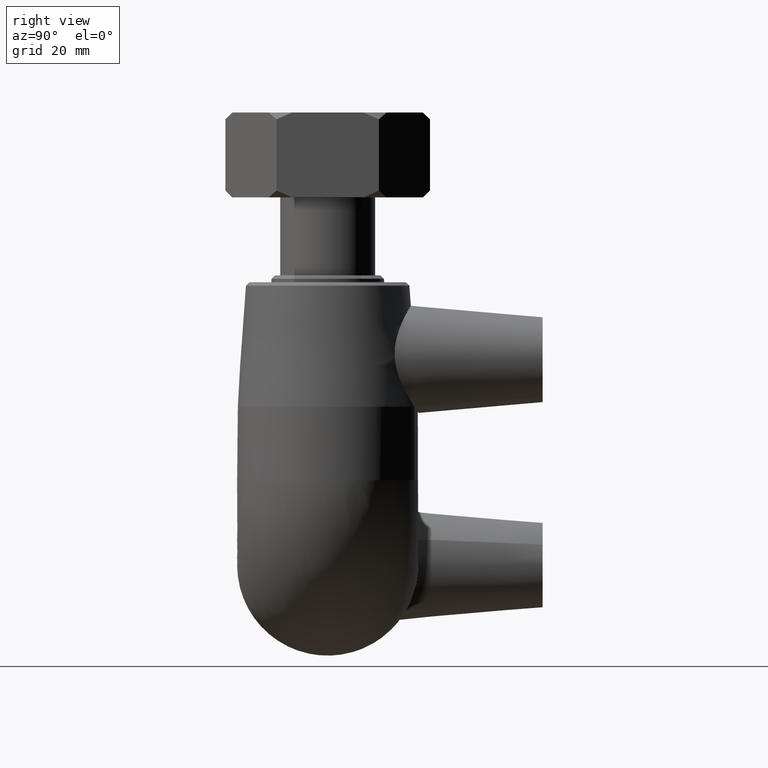
[diagram: clean part render]
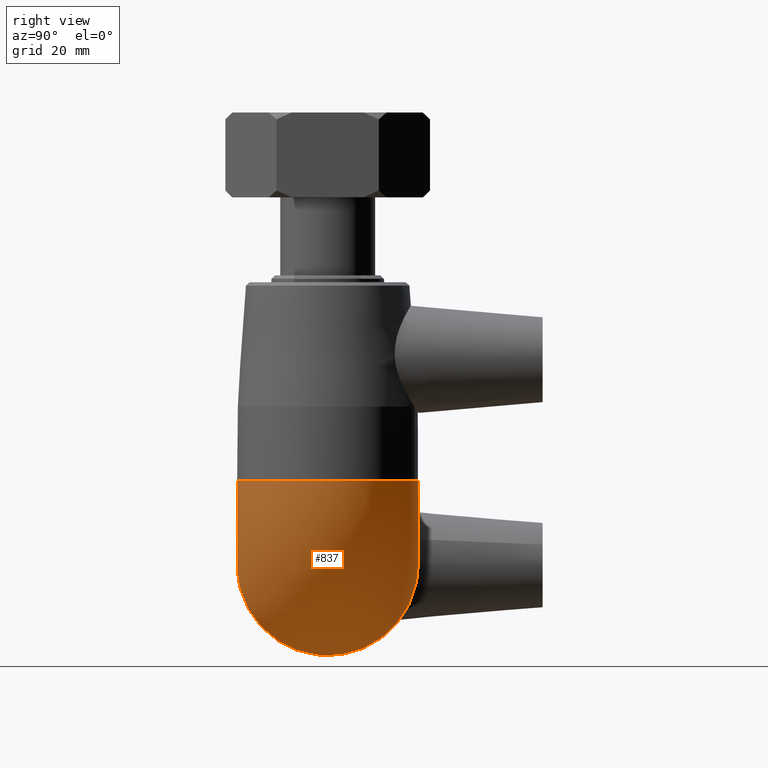
[diagram: same view with one face highlighted and labeled with its STEP entity id]
A machine part, right view. The second image highlights one B-rep face of the part: STEP entity #837.
In plain terms, the highlighted face is a freeform B-spline surface patch.
Its self-contained STEP definition (entity closure, byte-faithful):
#16=(
BOUNDED_SURFACE()
B_SPLINE_SURFACE(2,2,((#1544,#1545,#1546),(#1547,#1548,#1549),(#1550,#1551,
#1552),(#1553,#1554,#1555),(#1556,#1557,#1558),(#1559,#1560,#1561),(#1562,
#1563,#1564),(#1565,#1566,#1567),(#1568,#1569,#1570)),.UNSPECIFIED.,.F.,
 .F.,.F.)
B_SPLINE_SURFACE_WITH_KNOTS((3,2,2,2,3),(3,3),(-2.78617145189957,-1.39308572594979,
0.,1.39308572594979,2.78617145189957),(-4.067388539241E-18,1.5707963267949),
 .UNSPECIFIED.)
GEOMETRIC_REPRESENTATION_ITEM()
RATIONAL_B_SPLINE_SURFACE(((1.,0.707106781186547,1.),(0.767064761052362,
0.542396694149364,0.767064761052362),(1.,0.707106781186547,1.),(0.767064761052362,
0.542396694149364,0.767064761052362),(1.,0.707106781186547,1.),(0.767064761052362,
0.542396694149364,0.767064761052362),(1.,0.707106781186547,1.),(0.767064761052362,
0.542396694149364,0.767064761052362),(1.,0.707106781186547,1.)))
REPRESENTATION_ITEM('')
SURFACE()
);
#204=FACE_OUTER_BOUND('',#292,.T.);
#292=EDGE_LOOP('',(#724,#725));
#366=CIRCLE('',#943,16.);
#367=CIRCLE('',#944,16.);
#448=VERTEX_POINT('',#1571);
#449=VERTEX_POINT('',#1572);
#546=EDGE_CURVE('',#448,#449,#366,.T.);
#547=EDGE_CURVE('',#449,#448,#367,.T.);
#724=ORIENTED_EDGE('',*,*,#546,.T.);
#725=ORIENTED_EDGE('',*,*,#547,.T.);
#837=ADVANCED_FACE('',(#204),#16,.F.);
#943=AXIS2_PLACEMENT_3D('',#1573,#1162,#1163);
#944=AXIS2_PLACEMENT_3D('',#1574,#1164,#1165);
#1162=DIRECTION('center_axis',(6.12323399573677E-17,-2.77555756156289E-18,
-1.));
#1163=DIRECTION('ref_axis',(-1.,0.,-6.12323399573677E-17));
#1164=DIRECTION('center_axis',(1.,-2.77555756156289E-18,0.));
#1165=DIRECTION('ref_axis',(0.,0.,-1.));
#1544=CARTESIAN_POINT('Ctrl Pts',(-15.,5.56776436282997,15.));
#1545=CARTESIAN_POINT('Ctrl Pts',(-15.,5.56776436282997,15.));
#1546=CARTESIAN_POINT('Ctrl Pts',(-15.,5.56776436282997,15.));
#1547=CARTESIAN_POINT('Ctrl Pts',(-15.,18.1137000724512,10.3431457505077));
#1548=CARTESIAN_POINT('Ctrl Pts',(-10.3431457505077,18.1137000724512,10.3431457505077));
#1549=CARTESIAN_POINT('Ctrl Pts',(-10.3431457505077,18.1137000724512,15.));
#1550=CARTESIAN_POINT('Ctrl Pts',(-15.,15.7480157480236,-2.82842712474616));
#1551=CARTESIAN_POINT('Ctrl Pts',(2.82842712474616,15.7480157480236,-2.82842712474616));
#1552=CARTESIAN_POINT('Ctrl Pts',(2.82842712474616,15.7480157480236,15.));
#1553=CARTESIAN_POINT('Ctrl Pts',(-15.,13.382331423596,-16.));
#1554=CARTESIAN_POINT('Ctrl Pts',(16.,13.382331423596,-16.));
#1555=CARTESIAN_POINT('Ctrl Pts',(16.,13.382331423596,15.));
#1556=CARTESIAN_POINT('Ctrl Pts',(-15.,0.,-16.));
#1557=CARTESIAN_POINT('Ctrl Pts',(16.,-8.60422844084496E-17,-16.));
#1558=CARTESIAN_POINT('Ctrl Pts',(16.,-8.60422844084496E-17,15.));
#1559=CARTESIAN_POINT('Ctrl Pts',(-15.,-13.382331423596,-16.));
#1560=CARTESIAN_POINT('Ctrl Pts',(16.,-13.382331423596,-16.));
#1561=CARTESIAN_POINT('Ctrl Pts',(16.,-13.382331423596,15.));
#1562=CARTESIAN_POINT('Ctrl Pts',(-15.,-15.7480157480236,-2.82842712474616));
#1563=CARTESIAN_POINT('Ctrl Pts',(2.82842712474616,-15.7480157480236,-2.82842712474616));
#1564=CARTESIAN_POINT('Ctrl Pts',(2.82842712474616,-15.7480157480236,15.));
#1565=CARTESIAN_POINT('Ctrl Pts',(-15.,-18.1137000724512,10.3431457505077));
#1566=CARTESIAN_POINT('Ctrl Pts',(-10.3431457505077,-18.1137000724512,10.3431457505077));
#1567=CARTESIAN_POINT('Ctrl Pts',(-10.3431457505077,-18.1137000724512,15.));
#1568=CARTESIAN_POINT('Ctrl Pts',(-15.,-5.56776436282997,15.));
#1569=CARTESIAN_POINT('Ctrl Pts',(-15.,-5.56776436282997,15.));
#1570=CARTESIAN_POINT('Ctrl Pts',(-15.,-5.56776436282997,15.));
#1571=CARTESIAN_POINT('',(-15.,5.56776436282998,15.));
#1572=CARTESIAN_POINT('',(-15.,-5.56776436282998,15.));
#1573=CARTESIAN_POINT('Origin',(-9.18485099360516E-16,-9.71445146547012E-17,
15.));
#1574=CARTESIAN_POINT('Origin',(-15.,-9.71445146547012E-17,0.));